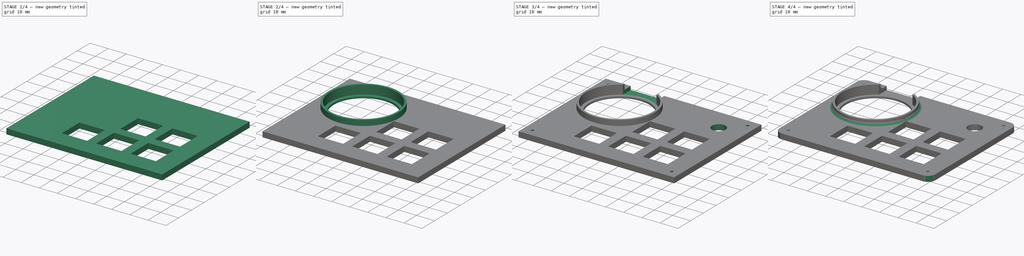
[diagram: build sequence overview — one tinted view per stage of 4, left to right]
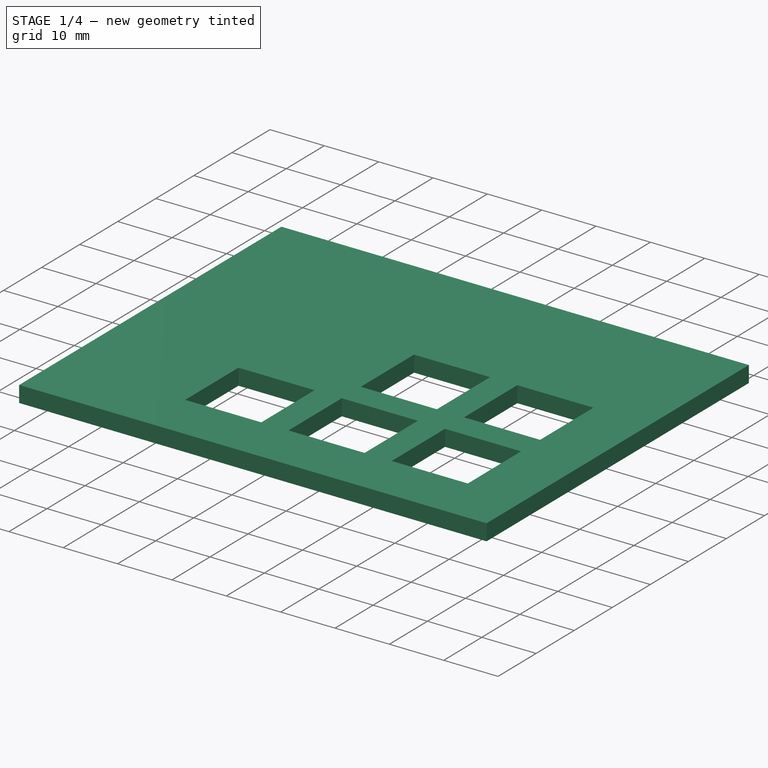
[diagram: stage 1 of 4 — iso view after this stage's code; geometry added in this stage tinted green]
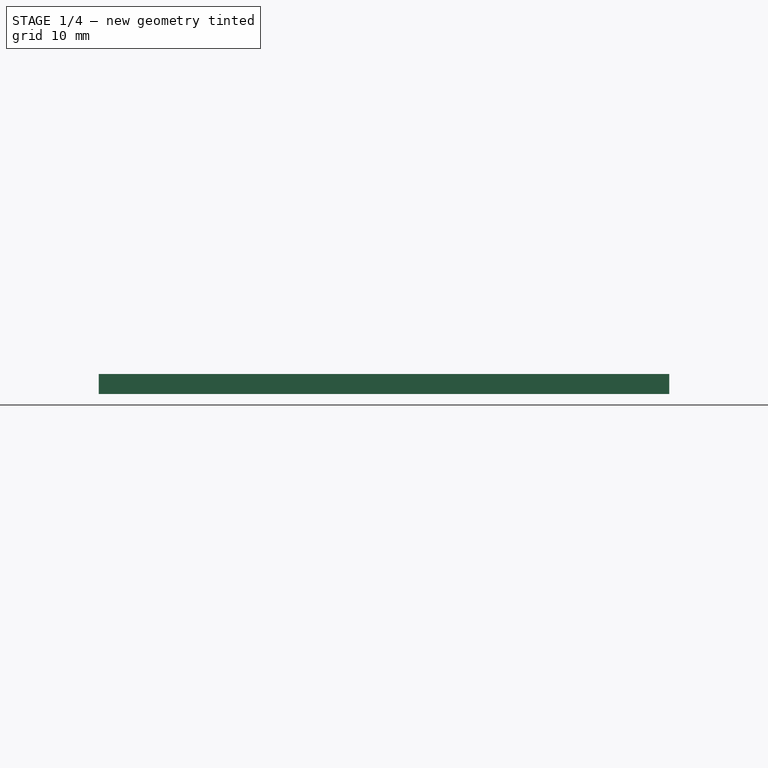
[diagram: stage 1 of 4 — front view after this stage's code; geometry added in this stage tinted green]
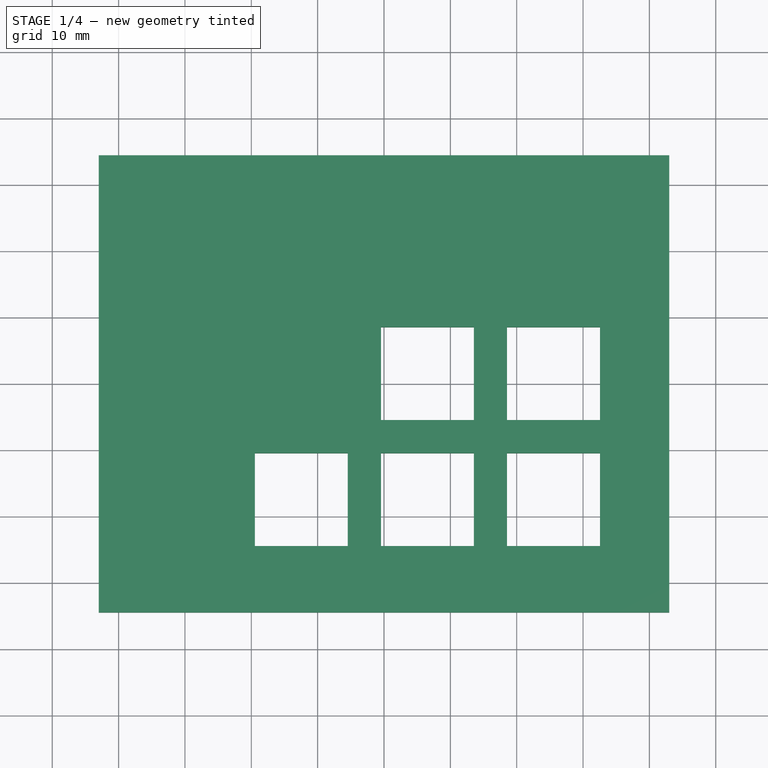
[diagram: stage 1 of 4 — top view after this stage's code; geometry added in this stage tinted green]
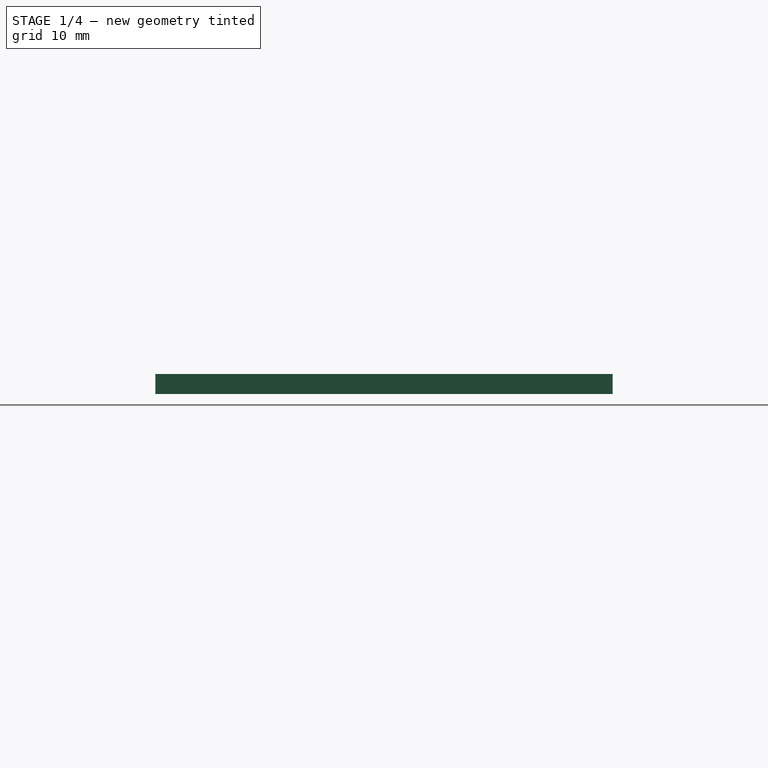
[diagram: stage 1 of 4 — right view after this stage's code; geometry added in this stage tinted green]
FCSTD DOCUMENT  (FreeCAD 0.19R)
Label: makro-buddy-lid-1.0
License: All rights reserved
LicenseURL: http://en.wikipedia.org/wiki/All_rights_reserved
objects: Sketcher::SketchObject×8, PartDesign::Pocket×5, PartDesign::Pad×2, PartDesign::Fillet×2, PartDesign::Hole×1, PartDesign::Body×1
note: 29 computed .brp shape members not serialized (recipe doc carries the construction recipe); baked Part::Feature solids carry a one-line shape summary decoded from their .brp

FEATURE [Sketcher::SketchObject] Sketch
  FullyConstrained = true
  MapMode = 5
  Support = -> [XY_Plane]
  sketch-geometry (4):
    g0: LineSegment StartX=-43 StartY=34.45 StartZ=0 EndX=43 EndY=34.45 EndZ=0
    g1: LineSegment StartX=43 StartY=34.45 StartZ=0 EndX=43 EndY=-34.45 EndZ=0
    g2: LineSegment StartX=43 StartY=-34.45 StartZ=0 EndX=-43 EndY=-34.45 EndZ=0
    g3: LineSegment StartX=-43 StartY=-34.45 StartZ=0 EndX=-43 EndY=34.45 EndZ=0
  constraints (11):
    c: Coincident(g0,g1)
    c: Coincident(g1,g2)
    c: Coincident(g2,g3)
    c: Coincident(g3,g0)
    c: Horizontal(g0)
    c: Horizontal(g2)
    c: Vertical(g1)
    c: Vertical(g3)
    c: DistanceX(g2,g2) = 86
    c: DistanceY(g1,g1) = 68.9
    c: Symmetric(g0,g1,g-1)
FEATURE [PartDesign::Pad] Pad
  Direction = (1,1,1)
  Length = 3
  Length2 = 100
  Profile = -> Sketch
  Type = 0
FEATURE [Sketcher::SketchObject] Sketch001  label="keycaps"
  ExternalGeometry = -> [Pad]
  FullyConstrained = false
  MapMode = 5
  Placement = pos=(0,0,3) rot=(0,0,1;0rad)
  Support = -> [Pad]
  sketch-geometry (20):
    g0: LineSegment StartX=-19.4541 StartY=-10.45 StartZ=0 EndX=-5.45411 EndY=-10.45 EndZ=0
    g1: LineSegment StartX=-5.45411 StartY=-10.45 StartZ=0 EndX=-5.45411 EndY=-24.45 EndZ=0
    g2: LineSegment StartX=-5.45411 StartY=-24.45 StartZ=0 EndX=-19.4541 EndY=-24.45 EndZ=0
    g3: LineSegment StartX=-19.4541 StartY=-24.45 StartZ=0 EndX=-19.4541 EndY=-10.45 EndZ=0
    g4: LineSegment StartX=-0.454107 StartY=-10.45 StartZ=0 EndX=13.5459 EndY=-10.45 EndZ=0
    g5: LineSegment StartX=13.5459 StartY=-10.45 StartZ=0 EndX=13.5459 EndY=-24.45 EndZ=0
    g6: LineSegment StartX=13.5459 StartY=-24.45 StartZ=0 EndX=-0.454107 EndY=-24.45 EndZ=0
    g7: LineSegment StartX=-0.454107 StartY=-24.45 StartZ=0 EndX=-0.454107 EndY=-10.45 EndZ=0
    g8: LineSegment StartX=18.5459 StartY=-10.45 StartZ=0 EndX=32.5459 EndY=-10.45 EndZ=0
    g9: LineSegment StartX=32.5459 StartY=-10.45 StartZ=0 EndX=32.5459 EndY=-24.45 EndZ=0
    g10: LineSegment StartX=32.5459 StartY=-24.45 StartZ=0 EndX=18.5459 EndY=-24.45 EndZ=0
    g11: LineSegment StartX=18.5459 StartY=-24.45 StartZ=0 EndX=18.5459 EndY=-10.45 EndZ=0
    g12: LineSegment StartX=18.5459 StartY=8.55 StartZ=0 EndX=32.5459 EndY=8.55 EndZ=0
    g13: LineSegment StartX=32.5459 StartY=8.55 StartZ=0 EndX=32.5459 EndY=-5.45 EndZ=0
    g14: LineSegment StartX=32.5459 StartY=-5.45 StartZ=0 EndX=18.5459 EndY=-5.45 EndZ=0
    g15: LineSegment StartX=18.5459 StartY=-5.45 StartZ=0 EndX=18.5459 EndY=8.55 EndZ=0
    g16: LineSegment StartX=-0.454107 StartY=8.55 StartZ=0 EndX=13.5459 EndY=8.55 EndZ=0
    g17: LineSegment StartX=13.5459 StartY=8.55 StartZ=0 EndX=13.5459 EndY=-5.45 EndZ=0
    g18: LineSegment StartX=13.5459 StartY=-5.45 StartZ=0 EndX=-0.454107 EndY=-5.45 EndZ=0
    g19: LineSegment StartX=-0.454107 StartY=-5.45 StartZ=0 EndX=-0.454107 EndY=8.55 EndZ=0
  constraints (59):
    c: Coincident(g0,g1)
    c: Coincident(g1,g2)
    c: Coincident(g2,g3)
    c: Coincident(g3,g0)
    c: Horizontal(g0)
    c: Horizontal(g2)
    c: Vertical(g1)
    c: Vertical(g3)
    c: DistanceY(g1,g1) = 14
    c: DistanceX(g2,g2) = 14
    c: DistanceY(g-3,g2) = 10
    c: Coincident(g4,g5)
    c: Coincident(g5,g6)
    c: Coincident(g6,g7)
    c: Coincident(g7,g4)
    c: Horizontal(g4)
    c: Horizontal(g6)
    c: Vertical(g5)
    c: Vertical(g7)
    c: Equal(g1,g5) = 14
    c: Equal(g2,g6) = 14
    c: Coincident(g8,g9)
    c: Coincident(g9,g10)
    c: Coincident(g10,g11)
    c: Coincident(g11,g8)
    c: Horizontal(g8)
    c: Horizontal(g10)
    c: Vertical(g9)
    c: Vertical(g11)
    c: Coincident(g12,g13)
    c: Coincident(g13,g14)
    c: Coincident(g14,g15)
    c: Coincident(g15,g12)
    c: Horizontal(g12)
    c: Horizontal(g14)
    c: Vertical(g13)
    c: Vertical(g15)
    c: Coincident(g16,g17)
    c: Coincident(g17,g18)
    c: Coincident(g18,g19)
    c: Coincident(g19,g16)
    c: Horizontal(g16)
    c: Horizontal(g18)
    c: Vertical(g17)
    c: Vertical(g19)
    c: DistanceX(g0,g4) = 5
    c: DistanceY(g0,g4) = 0
    c: DistanceX(g4,g8) = 5
    c: DistanceX(g8,g8) = 14
    c: DistanceY(g9,g9) = 14
    c: DistanceY(g4,g8) = 0
    c: DistanceY(g19,g19) = 14
    c: DistanceX(g16,g16) = 14
    c: DistanceX(g14,g14) = 14
    c: DistanceY(g13,g13) = 14
    c: DistanceY(g4,g18) = 5
    c: DistanceX(g4,g18) = 0
    c: DistanceY(g8,g14) = 5
    c: DistanceX(g8,g14) = 0
FEATURE [PartDesign::Pocket] Pocket
  BaseFeature = -> Pad
  Length = 5
  Length2 = 100
  Profile = -> Sketch001
  Type = 1
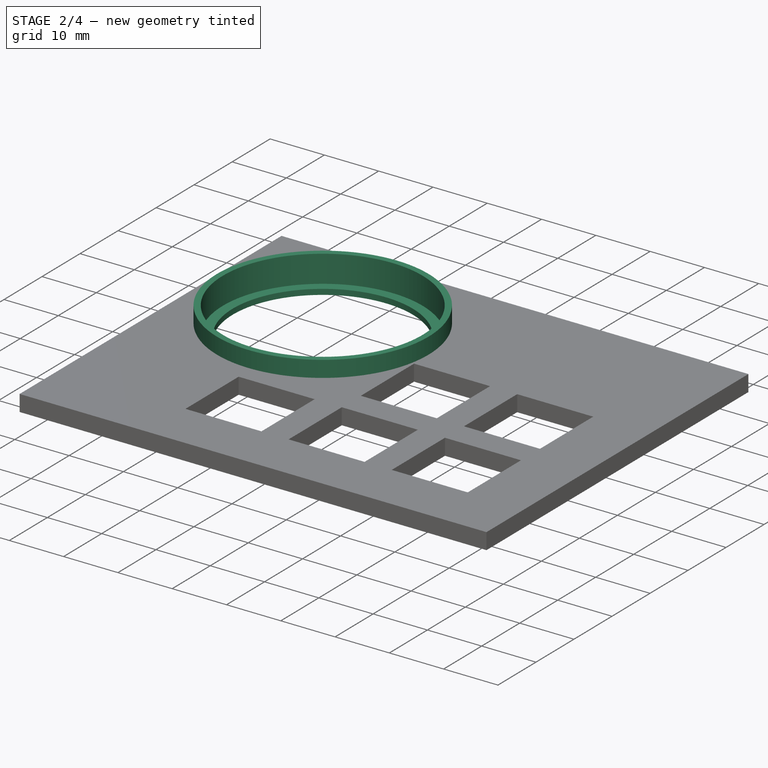
[diagram: stage 2 of 4 — iso view after this stage's code; geometry added in this stage tinted green]
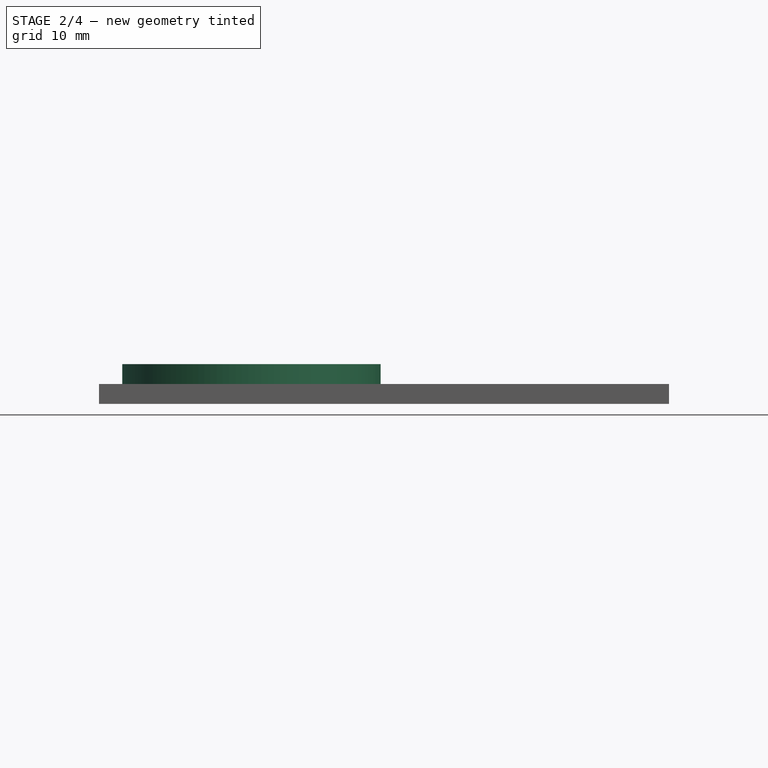
[diagram: stage 2 of 4 — front view after this stage's code; geometry added in this stage tinted green]
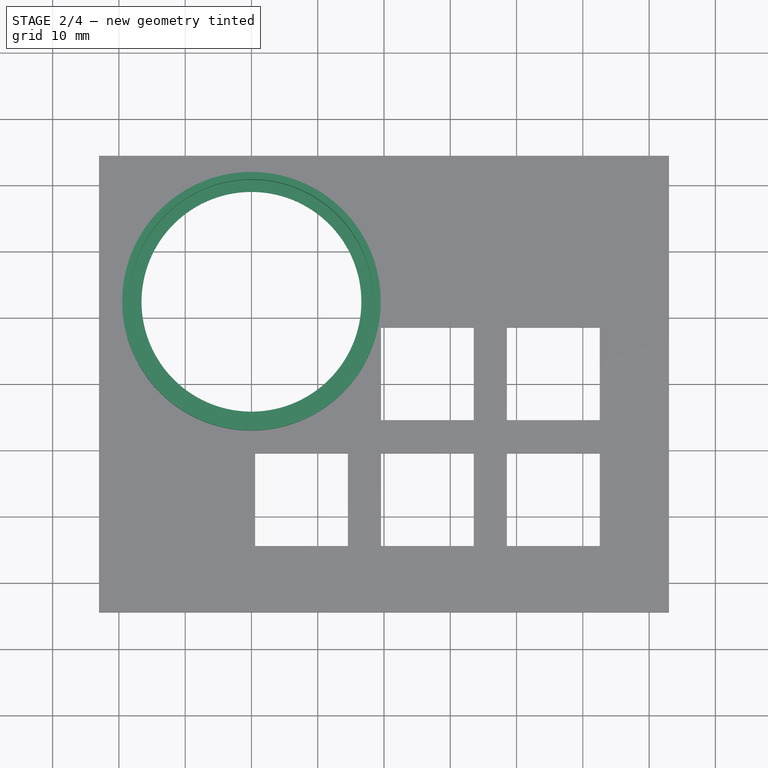
[diagram: stage 2 of 4 — top view after this stage's code; geometry added in this stage tinted green]
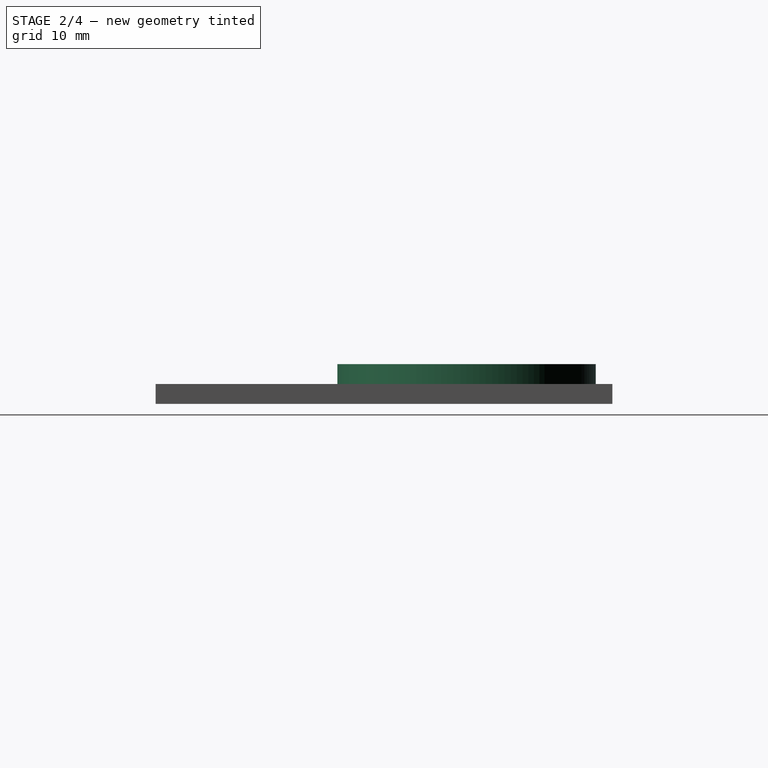
[diagram: stage 2 of 4 — right view after this stage's code; geometry added in this stage tinted green]
FEATURE [Sketcher::SketchObject] Sketch002
  ExternalGeometry = -> [Pocket]
  FullyConstrained = true
  MapMode = 5
  Placement = pos=(0,0,3) rot=(0,0,1;0rad)
  Support = -> [Pocket]
  sketch-geometry (1):
    g0: Circle CenterX=-20 CenterY=12.45 CenterZ=0 NormalX=0 NormalY=0 NormalZ=1 AngleXU=0 Radius=19.5
  constraints (3):
    c: Diameter(g0) = 39
    c: DistanceX(g-3,g0) = 23
    c: DistanceY(g0,g-3) = 22
FEATURE [PartDesign::Pad] Pad001
  BaseFeature = -> Pocket
  Direction = (1,1,1)
  Length = 3
  Length2 = 100
  Profile = -> Sketch002
  Type = 0
FEATURE [Sketcher::SketchObject] Sketch003
  ExternalGeometry = -> [Pad001]
  FullyConstrained = true
  MapMode = 5
  Placement = pos=(0,0,6) rot=(0,0,1;0rad)
  Support = -> [Pad001]
  sketch-geometry (1):
    g0: Circle CenterX=-20 CenterY=12.45 CenterZ=0 NormalX=0 NormalY=0 NormalZ=1 AngleXU=0 Radius=18.4
  constraints (2):
    c: Coincident(g0,g-3)
    c: Diameter(g0) = 36.8
FEATURE [PartDesign::Pocket] Pocket001
  BaseFeature = -> Pad001
  Length = 5
  Length2 = 100
  Profile = -> Sketch003
  Type = 0
FEATURE [Sketcher::SketchObject] Sketch004
  ExternalGeometry = -> [Pocket001]
  FullyConstrained = true
  MapMode = 5
  Placement = pos=(0,0,1) rot=(0,0,1;0rad)
  Support = -> [Pocket001]
  sketch-geometry (1):
    g0: Circle CenterX=-20 CenterY=12.45 CenterZ=0 NormalX=0 NormalY=0 NormalZ=1 AngleXU=0 Radius=16.585
  constraints (2):
    c: Coincident(g0,g-3)
    c: Diameter(g0) = 33.17
FEATURE [PartDesign::Pocket] Pocket002
  BaseFeature = -> Pocket001
  Length = 5
  Length2 = 100
  Profile = -> Sketch004
  Type = 1
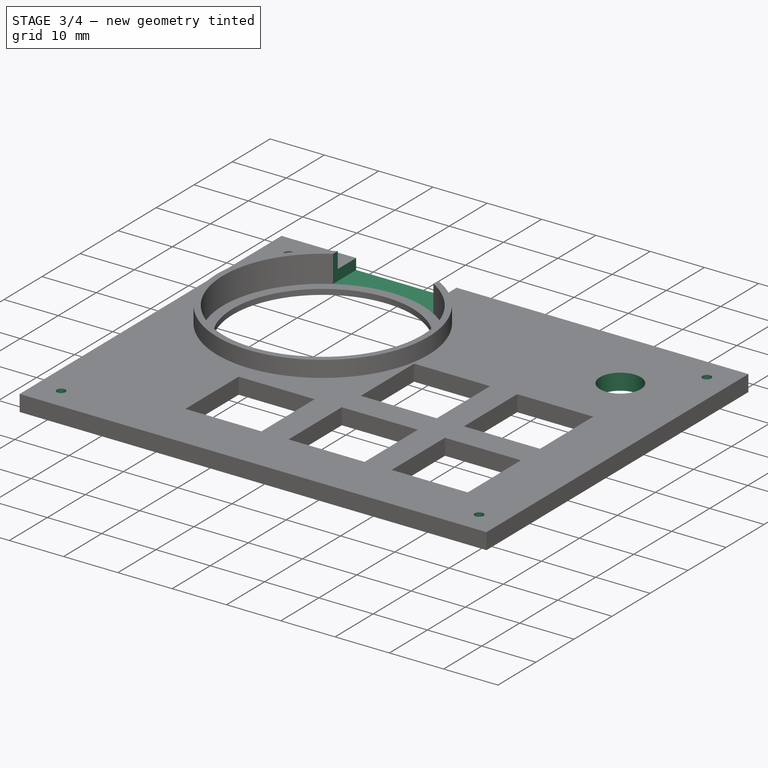
[diagram: stage 3 of 4 — iso view after this stage's code; geometry added in this stage tinted green]
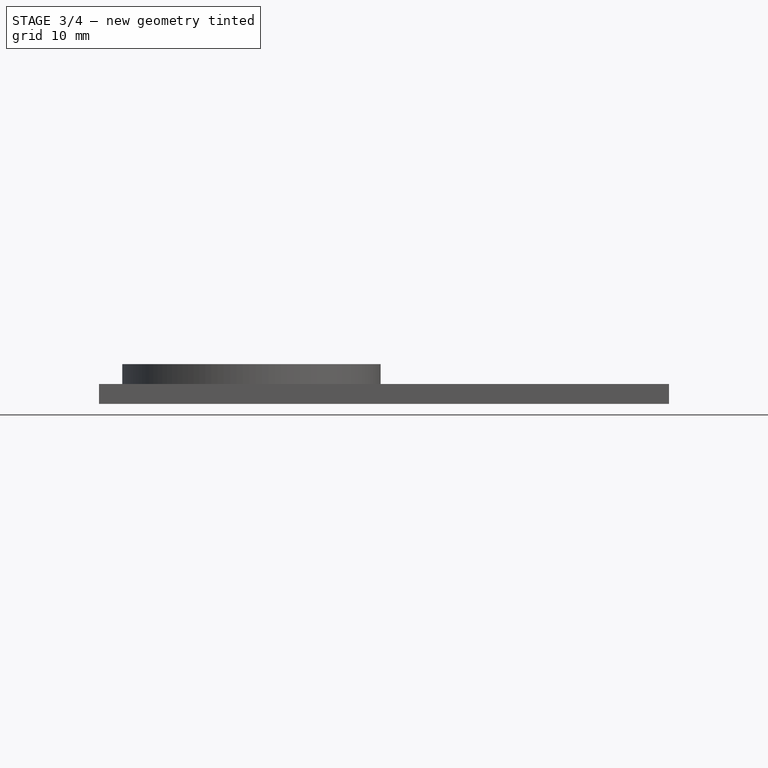
[diagram: stage 3 of 4 — front view after this stage's code; geometry added in this stage tinted green]
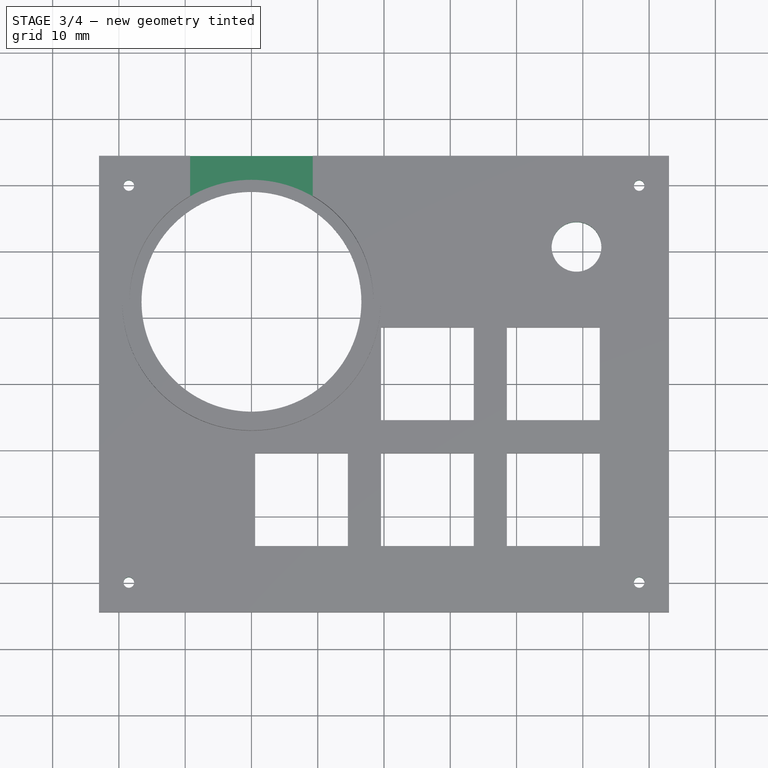
[diagram: stage 3 of 4 — top view after this stage's code; geometry added in this stage tinted green]
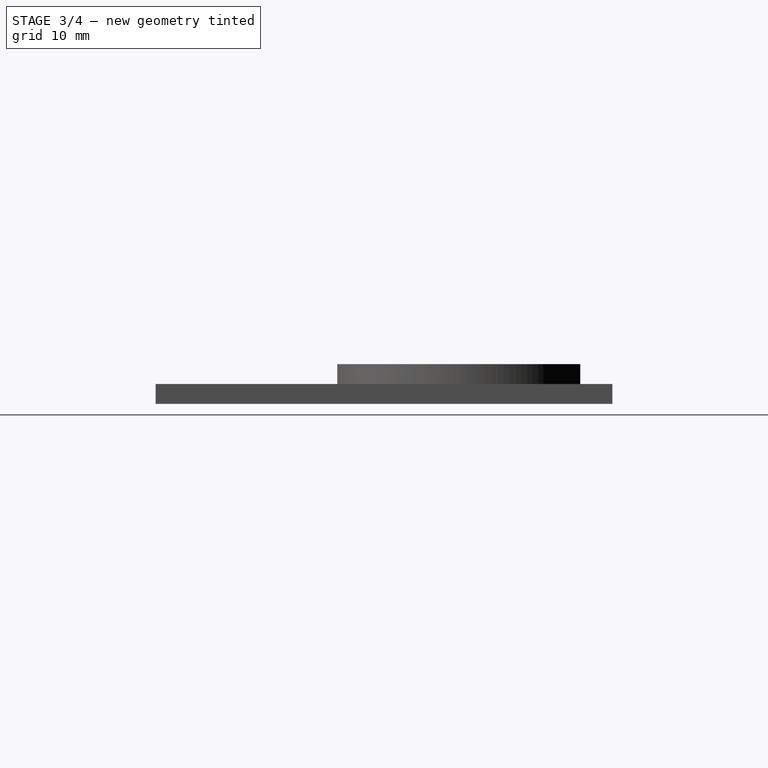
[diagram: stage 3 of 4 — right view after this stage's code; geometry added in this stage tinted green]
FEATURE [Sketcher::SketchObject] Sketch005
  ExternalGeometry = -> [Pocket002]
  FullyConstrained = true
  MapMode = 5
  Placement = pos=(0,0,6) rot=(0,0,1;0rad)
  Support = -> [Pocket002]
  sketch-geometry (4):
    g0: LineSegment StartX=-29.25 StartY=34.45 StartZ=0 EndX=-10.75 EndY=34.45 EndZ=0
    g1: LineSegment StartX=-10.75 StartY=34.45 StartZ=0 EndX=-10.75 EndY=12.45 EndZ=0
    g2: LineSegment StartX=-10.75 StartY=12.45 StartZ=0 EndX=-29.25 EndY=12.45 EndZ=0
    g3: LineSegment StartX=-29.25 StartY=12.45 StartZ=0 EndX=-29.25 EndY=34.45 EndZ=0
  constraints (11):
    c: Coincident(g0,g1)
    c: Coincident(g1,g2)
    c: Coincident(g2,g3)
    c: Coincident(g3,g0)
    c: Horizontal(g0)
    c: Horizontal(g2)
    c: Vertical(g1)
    c: Vertical(g3)
    c: DistanceX(g2,g2) = 18.5
    c: Symmetric(g2,g1,g-3)
    c: DistanceY(g0,g-4) = 0
FEATURE [PartDesign::Pocket] Pocket003
  BaseFeature = -> Pocket002
  Length = 5
  Length2 = 100
  Profile = -> Sketch005
  Type = 0
FEATURE [Sketcher::SketchObject] Sketch006
  ExternalGeometry = -> [Pocket003]
  FullyConstrained = true
  MapMode = 5
  Placement = pos=(0,0,3) rot=(0,0,1;0rad)
  Support = -> [Pocket003]
  sketch-geometry (1):
    g0: Circle CenterX=29.0459 CenterY=20.7 CenterZ=0 NormalX=0 NormalY=0 NormalZ=1 AngleXU=0 Radius=3.75
  constraints (3):
    c: Diameter(g0) = 7.5
    c: DistanceX(g0,g-3) = 3.5
    c: DistanceY(g0,g-4) = 13.75
FEATURE [PartDesign::Pocket] Pocket004
  BaseFeature = -> Pocket003
  Length = 5
  Length2 = 100
  Profile = -> Sketch006
  Type = 1
FEATURE [Sketcher::SketchObject] Sketch007
  ExternalGeometry = -> [Pocket004]
  FullyConstrained = true
  MapMode = 5
  Placement = pos=(0,0,3) rot=(0,0,1;0rad)
  Support = -> [Pocket004]
  sketch-geometry (4):
    g0: Circle CenterX=-38.5 CenterY=29.95 CenterZ=0 NormalX=0 NormalY=0 NormalZ=1 AngleXU=0 Radius=1
    g1: Circle CenterX=38.5 CenterY=29.95 CenterZ=0 NormalX=0 NormalY=0 NormalZ=1 AngleXU=0 Radius=1
    g2: Circle CenterX=-38.5 CenterY=-29.95 CenterZ=0 NormalX=0 NormalY=0 NormalZ=1 AngleXU=0 Radius=1
    g3: Circle CenterX=38.5 CenterY=-29.95 CenterZ=0 NormalX=0 NormalY=0 NormalZ=1 AngleXU=0 Radius=1
  constraints (12):
    c: Diameter(g0) = 2
    c: Diameter(g1) = 2
    c: Diameter(g2) = 2
    c: Diameter(g3) = 2
    c: DistanceX(g-3,g0) = 4.5
    c: DistanceY(g0,g-3) = 4.5
    c: DistanceX(g1,g-4) = 4.5
    c: DistanceY(g1,g-4) = 4.5
    c: DistanceY(g-5,g3) = 4.5
    c: DistanceX(g3,g-5) = 4.5
    c: DistanceX(g-5,g2) = 4.5
    c: DistanceY(g-5,g2) = 4.5
FEATURE [PartDesign::Hole] Hole
  BaseFeature = -> Pocket004
  Depth = 25
  DepthType = 0
  Diameter = 1.6
  DrillForDepth = false
  DrillPoint = 1
  DrillPointAngle = 118
  HoleCutCountersinkAngle = 90
  HoleCutCustomValues = false
  HoleCutDepth = 0
  HoleCutDiameter = 6.1
  HoleCutType = 0
  ModelActualThread = false
  Profile = -> Sketch007
  Tapered = false
  TaperedAngle = 90
  ThreadAngle = 60
  ThreadClass = 0
  ThreadCutOffInner = 0.0433013
  ThreadCutOffOuter = 0.0866025
  ThreadDirection = 0
  ThreadFit = 0
  ThreadPitch = 0.4
  ThreadSize = 6
  ThreadType = 1
  Threaded = true
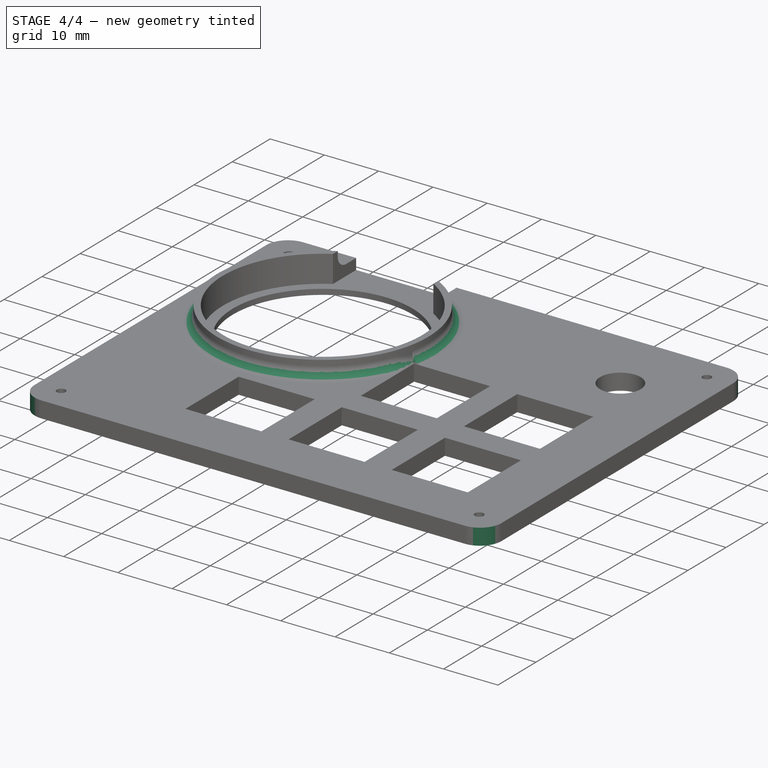
[diagram: stage 4 of 4 — iso view after this stage's code; geometry added in this stage tinted green]
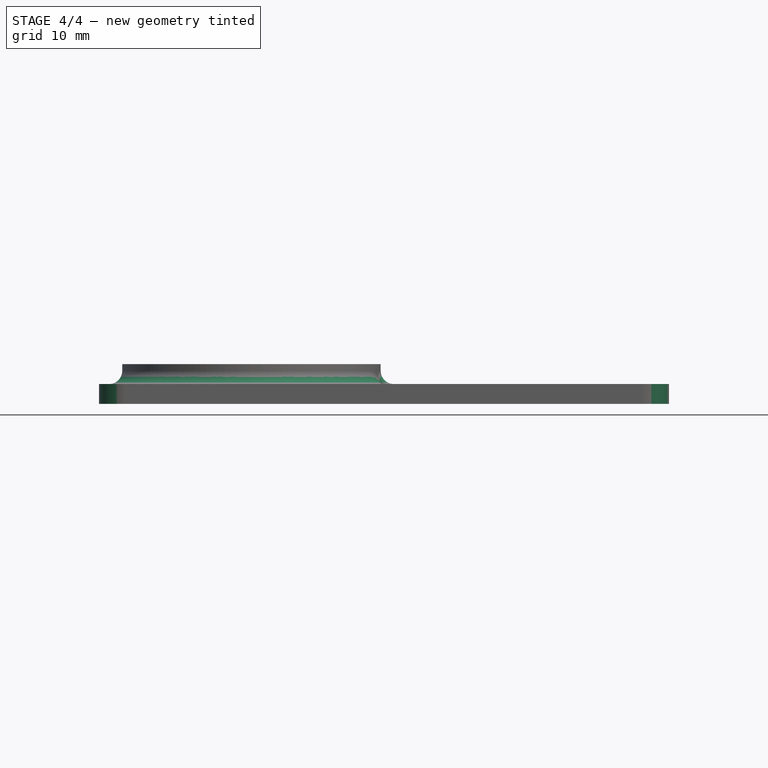
[diagram: stage 4 of 4 — front view after this stage's code; geometry added in this stage tinted green]
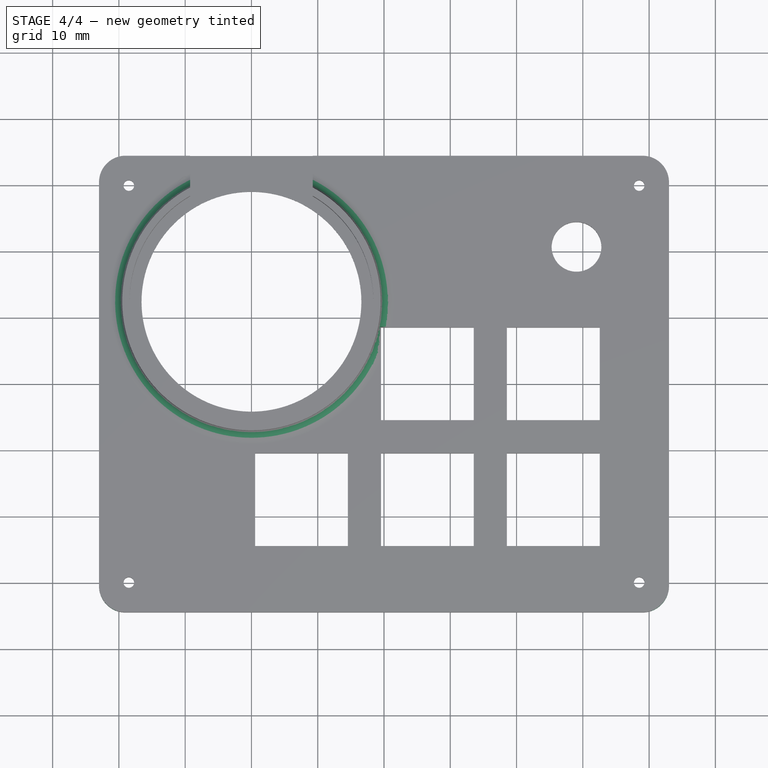
[diagram: stage 4 of 4 — top view after this stage's code; geometry added in this stage tinted green]
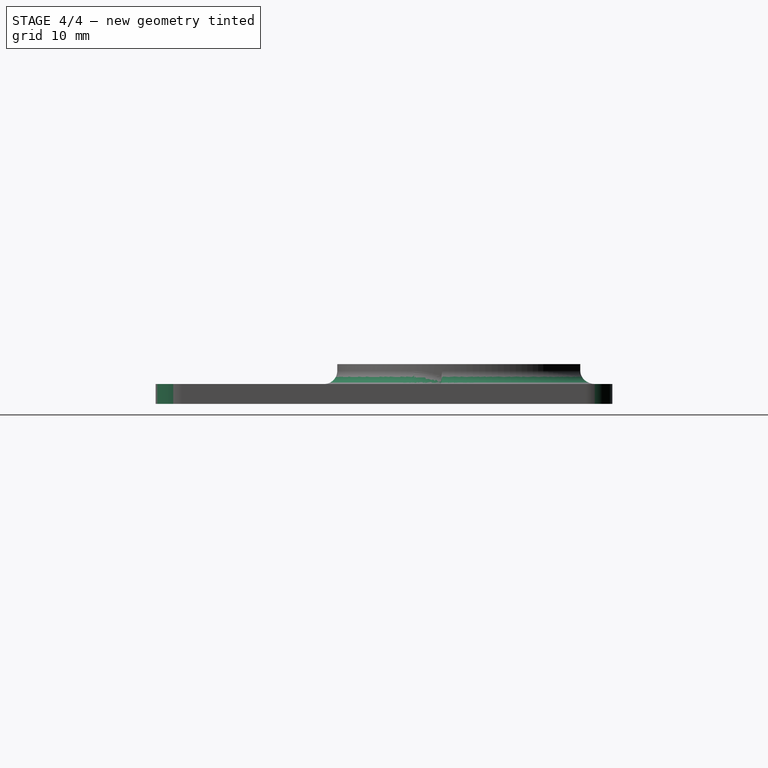
[diagram: stage 4 of 4 — right view after this stage's code; geometry added in this stage tinted green]
FEATURE [PartDesign::Fillet] Fillet
  Base = -> Hole [Edge8,Edge2,Edge38,Edge80]
  BaseFeature = -> Hole
  Radius = 4
  SupportTransform = false
FEATURE [PartDesign::Fillet] Fillet001
  Base = -> Fillet [Edge52,Edge53]
  BaseFeature = -> Fillet
  Radius = 2
  SupportTransform = false
FEATURE [PartDesign::Body] Body
  Group = -> [Sketch,Pad,Sketch001,Pocket,Sketch002,Pad001,Sketch003,Pocket001,Sketch004,Pocket002,Sketch005,Pocket003,Sketch006,Pocket004,Sketch007,Hole,Fillet,Fillet001]
  Origin = -> Origin
  Tip = -> Fillet001
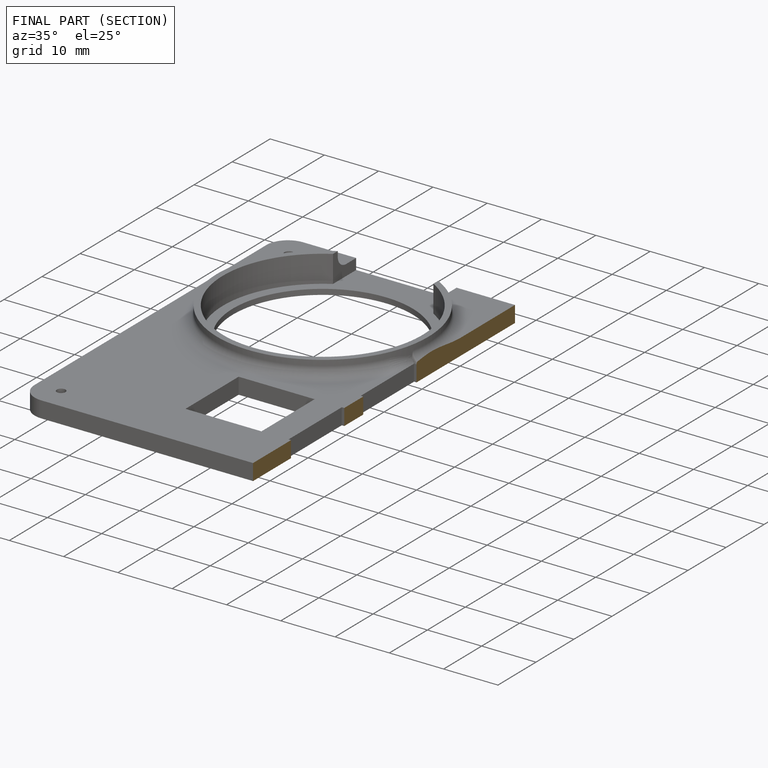
[diagram: finished part — half-section view (interior)]
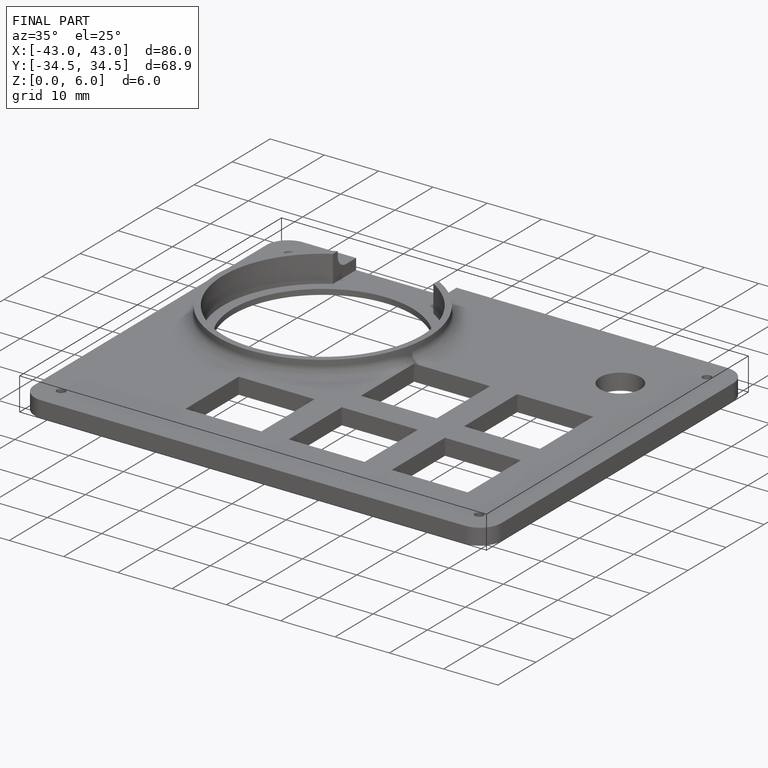
[diagram: finished part — iso view with bounding-box wireframe]
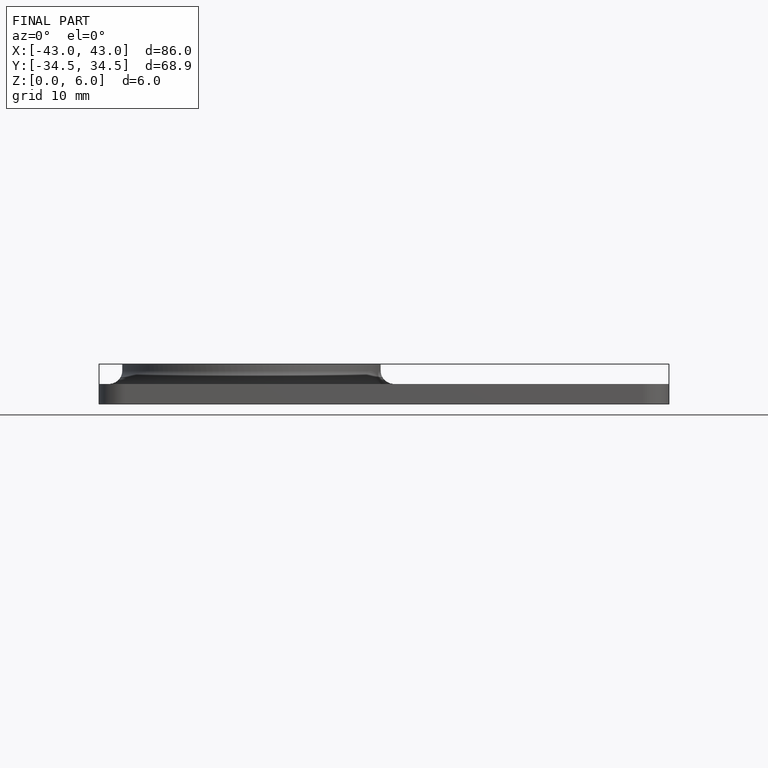
[diagram: finished part — front view with bounding-box wireframe]
